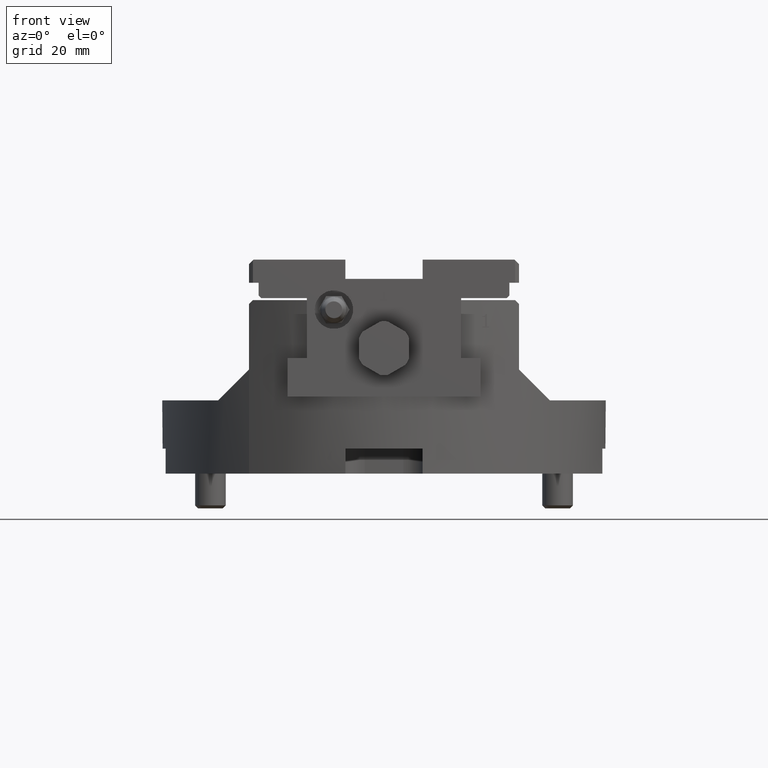
[diagram: clean part render]
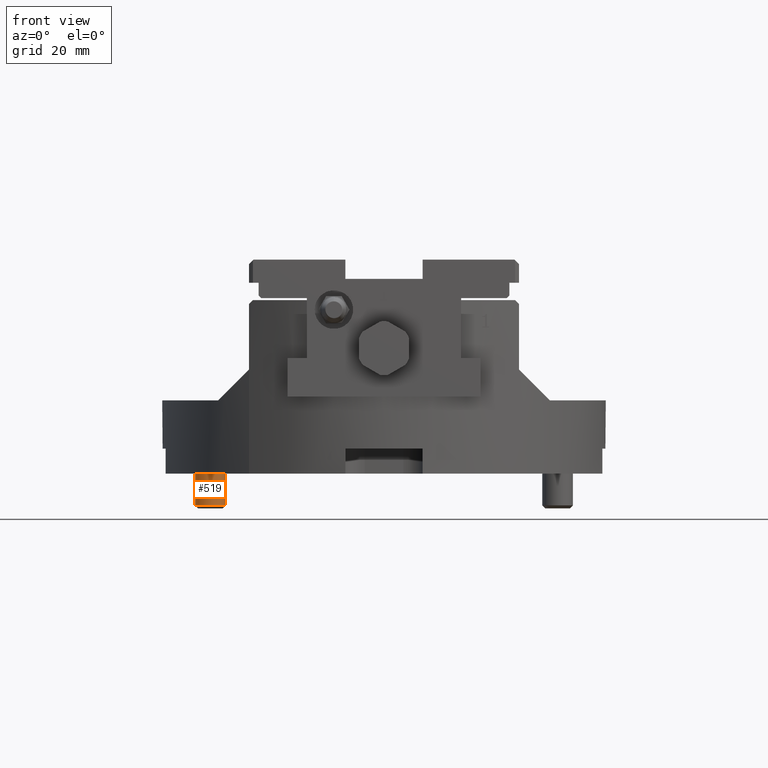
[diagram: same view with one face highlighted and labeled with its STEP entity id]
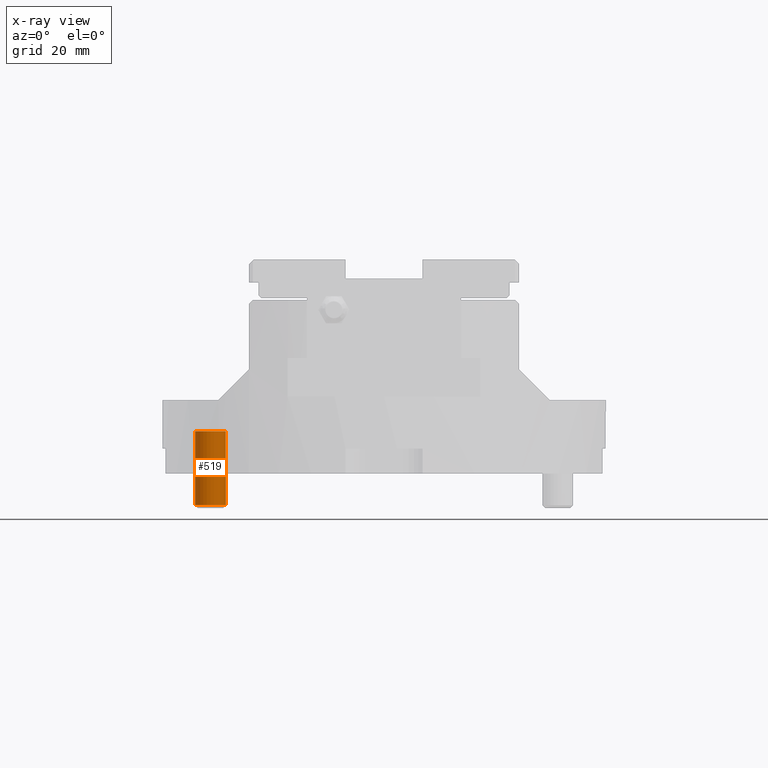
[diagram: x-ray of the same camera — body ghosted, the highlighted face saturated]
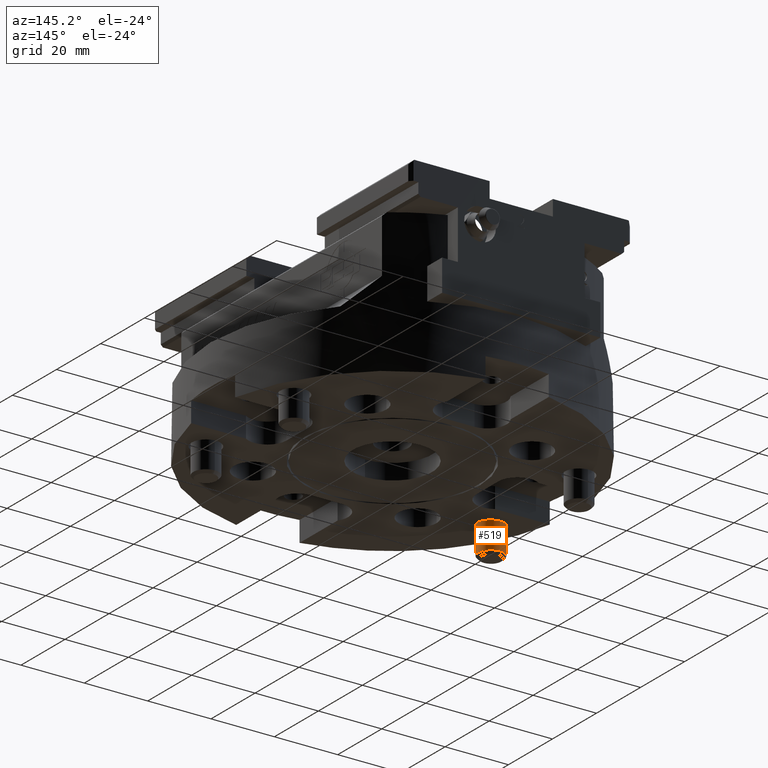
[diagram: same view with one face highlighted and labeled with its STEP entity id]
A machine part, front view. The second image highlights one B-rep face of the part: STEP entity #519.
The next image is the same camera in x-ray: the body ghosted, the highlighted face saturated — about 0% of this face is hidden behind the body in this view.
A second angle (auxiliary view) of the same face is appended — the face is thin or edge-on in the first view.
In plain terms, the highlighted cylindrical surface (bore or boss wall) has radius 4 mm, axis along (-0, -0, -1).
Its self-contained STEP definition (entity closure, byte-faithful):
#468=CARTESIAN_POINT('',(-44.999999999999972,-15.999999999999993,10.999999999999959));
#469=VERTEX_POINT('',#468);
#470=CARTESIAN_POINT('',(-44.999999999999972,-19.999999999999993,10.999999999999961));
#471=DIRECTION('',(0.0,0.0,-1.0));
#472=DIRECTION('',(0.0,1.0,0.0));
#473=AXIS2_PLACEMENT_3D('',#470,#471,#472);
#474=CIRCLE('',#473,4.000000000000002);
#475=EDGE_CURVE('',#469,#469,#474,.T.);
#485=CARTESIAN_POINT('',(-44.999999999999972,-16.0,-8.233187500000039));
#486=VERTEX_POINT('',#485);
#487=CARTESIAN_POINT('',(-44.999999999999972,-20.0,-8.233187500000037));
#488=DIRECTION('',(0.0,0.0,-1.0));
#489=DIRECTION('',(0.0,-1.0,0.0));
#490=AXIS2_PLACEMENT_3D('',#487,#488,#489);
#491=CIRCLE('',#490,3.999999999999999);
#492=EDGE_CURVE('',#486,#486,#491,.T.);
#508=CARTESIAN_POINT('',(-44.999999999999972,-19.999999999999996,-0.562500000000037));
#509=DIRECTION('',(-4.604179E-034,-3.713185E-016,-1.0));
#510=DIRECTION('',(0.0,1.0,0.0));
#511=AXIS2_PLACEMENT_3D('',#508,#509,#510);
#512=CYLINDRICAL_SURFACE('',#511,3.999999999999999);
#513=ORIENTED_EDGE('',*,*,#475,.T.);
#514=EDGE_LOOP('',(#513));
#515=FACE_OUTER_BOUND('',#514,.T.);
#516=ORIENTED_EDGE('',*,*,#492,.F.);
#517=EDGE_LOOP('',(#516));
#518=FACE_BOUND('',#517,.T.);
#519=ADVANCED_FACE('',(#515,#518),#512,.T.);